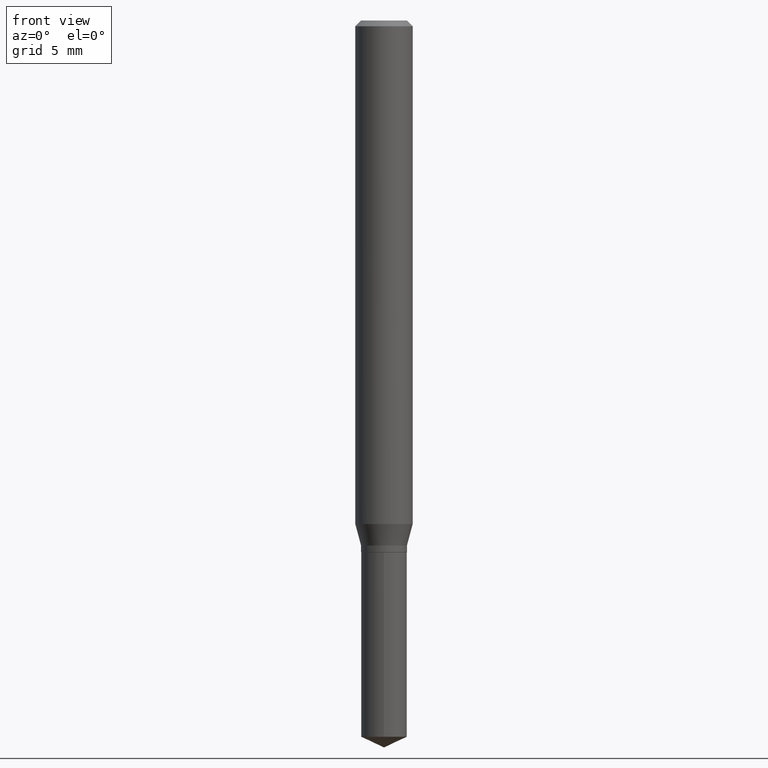
[diagram: clean part render]
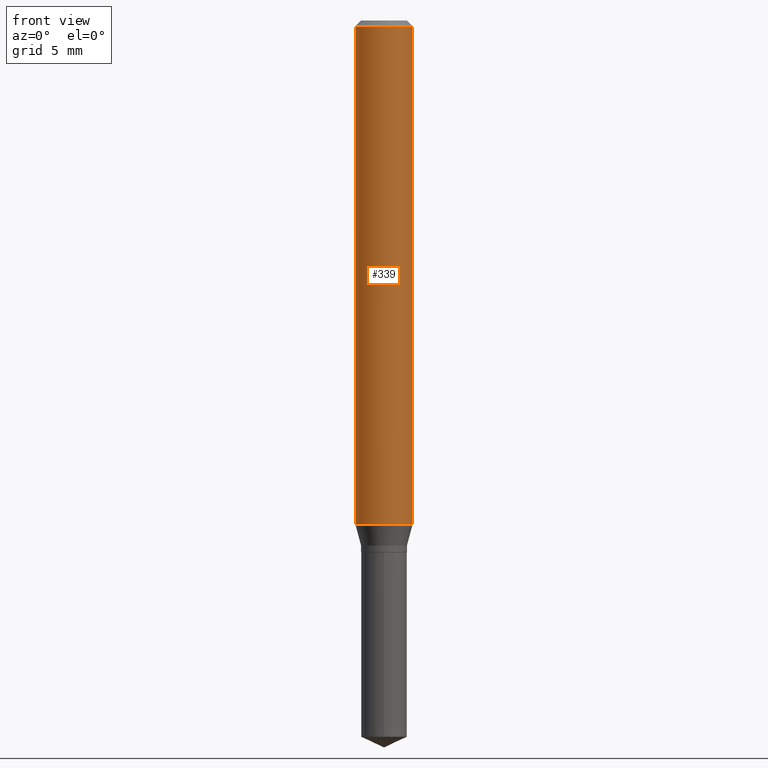
[diagram: same view with one face highlighted and labeled with its STEP entity id]
A machine part, front view. The second image highlights one B-rep face of the part: STEP entity #339.
In plain terms, the highlighted cylindrical surface (edge-blend (fillet) strip) has radius 1.4999 mm, axis along (-0, 0, 1).
Its self-contained STEP definition (entity closure, byte-faithful):
#7 = AXIS2_PLACEMENT_3D ( 'NONE', #478, #299, #243 ) ;
#20 = CARTESIAN_POINT ( 'NONE',  ( 0.000000000000000000, 0.000000000000000000, 0.000000000000000000 ) ) ;
#40 = AXIS2_PLACEMENT_3D ( 'NONE', #273, #312, #82 ) ;
#51 = DIRECTION ( 'NONE',  ( -2.445468806185136597E-29, 3.491481338843145583E-15, 1.000000000000000000 ) ) ;
#61 = ORIENTED_EDGE ( 'NONE', *, *, #407, .F. ) ;
#82 = DIRECTION ( 'NONE',  ( 1.000000000000000000, -6.982962677686266711E-15, 0.000000000000000000 ) ) ;
#91 = VERTEX_POINT ( 'NONE', #217 ) ;
#97 = VERTEX_POINT ( 'NONE', #178 ) ;
#101 = EDGE_CURVE ( 'NONE', #91, #176, #180, .T. ) ;
#103 = EDGE_CURVE ( 'NONE', #97, #354, #452, .T. ) ;
#108 = CARTESIAN_POINT ( 'NONE',  ( -0.05905000000000006771, 4.195754854663396409E-16, -2.904631170795525045E-30 ) ) ;
#128 = ORIENTED_EDGE ( 'NONE', *, *, #103, .F. ) ;
#173 = CYLINDRICAL_SURFACE ( 'NONE', #377, 0.05905000000000006771 ) ;
#176 = VERTEX_POINT ( 'NONE', #355 ) ;
#178 = CARTESIAN_POINT ( 'NONE',  ( -0.05905000000000013016, -3.198513253033061898E-15, -1.036261800470686723 ) ) ;
#180 = LINE ( 'NONE', #444, #338 ) ;
#217 = CARTESIAN_POINT ( 'NONE',  ( 0.05905000000000013016, -4.030432684616777494E-15, -1.036261800470686723 ) ) ;
#243 = DIRECTION ( 'NONE',  ( 1.000000000000000000, -6.982962677686265133E-15, 0.000000000000000000 ) ) ;
#260 = VECTOR ( 'NONE', #342, 39.37007874015748143 ) ;
#273 = CARTESIAN_POINT ( 'NONE',  ( 2.888098660104664642E-31, -4.123439461173780879E-17, -0.01181000000000007565 ) ) ;
#287 = ORIENTED_EDGE ( 'NONE', *, *, #419, .T. ) ;
#290 = CIRCLE ( 'NONE', #7, 0.05905000000000013016 ) ;
#299 = DIRECTION ( 'NONE',  ( -2.445468806185136597E-29, 3.491481338843145583E-15, 1.000000000000000000 ) ) ;
#304 = DIRECTION ( 'NONE',  ( -2.445468806185136877E-29, 3.491481338843145188E-15, 1.000000000000000000 ) ) ;
#312 = DIRECTION ( 'NONE',  ( -2.445468806185136597E-29, 3.491481338843145583E-15, 1.000000000000000000 ) ) ;
#314 = DIRECTION ( 'NONE',  ( 1.000000000000000000, -6.982962677686266711E-15, 4.876176775795936353E-29 ) ) ;
#315 = EDGE_LOOP ( 'NONE', ( #128, #287, #429, #61 ) ) ;
#338 = VECTOR ( 'NONE', #304, 39.37007874015748143 ) ;
#339 = ADVANCED_FACE ( 'NONE', ( #397 ), #173, .T. ) ;
#342 = DIRECTION ( 'NONE',  ( -2.445468806185136877E-29, 3.491481338843145188E-15, 1.000000000000000000 ) ) ;
#354 = VERTEX_POINT ( 'NONE', #442 ) ;
#355 = CARTESIAN_POINT ( 'NONE',  ( 0.05904999999999999832, -4.535783407291118600E-16, -0.01181000000000007565 ) ) ;
#377 = AXIS2_PLACEMENT_3D ( 'NONE', #20, #51, #314 ) ;
#397 = FACE_OUTER_BOUND ( 'NONE', #315, .T. ) ;
#400 = CIRCLE ( 'NONE', #40, 0.05904999999999999832 ) ;
#407 = EDGE_CURVE ( 'NONE', #354, #176, #400, .T. ) ;
#419 = EDGE_CURVE ( 'NONE', #97, #91, #290, .T. ) ;
#429 = ORIENTED_EDGE ( 'NONE', *, *, #101, .T. ) ;
#442 = CARTESIAN_POINT ( 'NONE',  ( -0.05904999999999999832, -1.410086081089229475E-15, -0.01181000000000007565 ) ) ;
#444 = CARTESIAN_POINT ( 'NONE',  ( 0.05905000000000006771, -4.123439461173745257E-16, 2.879382386107503723E-30 ) ) ;
#452 = LINE ( 'NONE', #108, #260 ) ;
#478 = CARTESIAN_POINT ( 'NONE',  ( 2.534145908092310761E-29, -3.618088738499401785E-15, -1.036261800470686723 ) ) ;